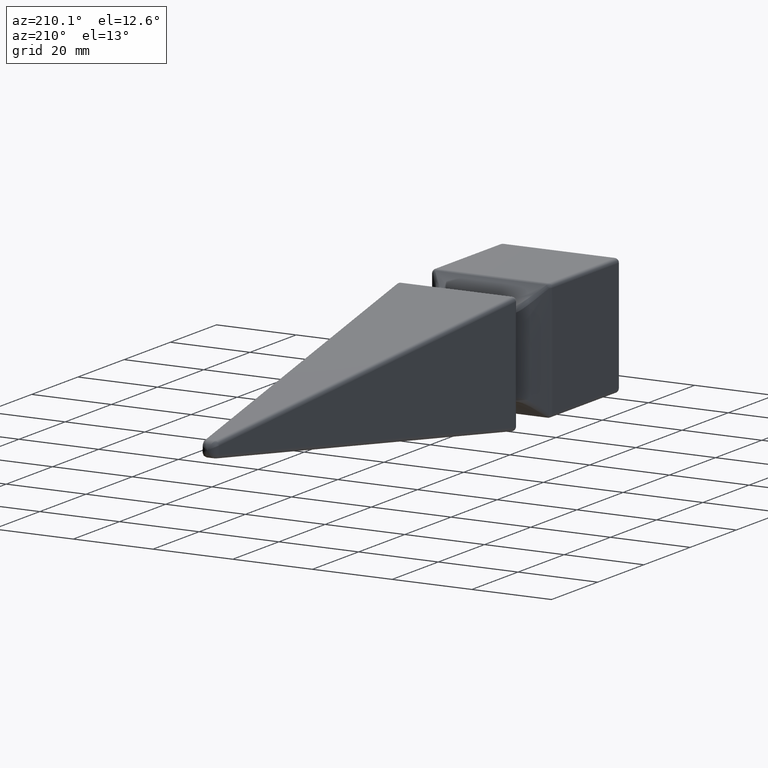
[diagram: clean part render]
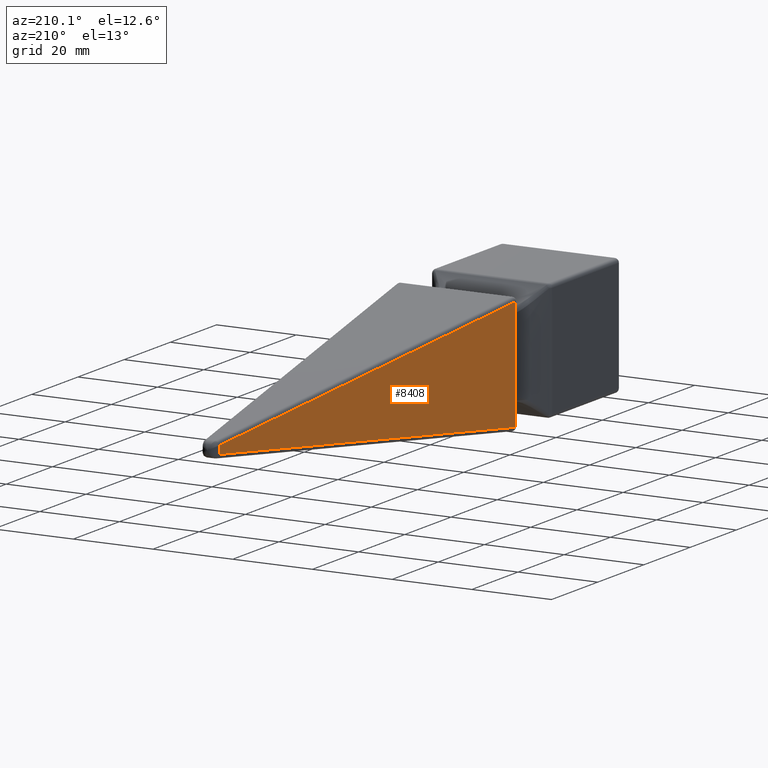
[diagram: same view with one face highlighted and labeled with its STEP entity id]
A machine part, auxiliary view. The second image highlights one B-rep face of the part: STEP entity #8408.
In plain terms, the highlighted planar face has unit normal (-0.9926, 0.1216, 0).
Its self-contained STEP definition (entity closure, byte-faithful):
#116 = LINE ( 'NONE', #6956, #8076 ) ;
#889 = CARTESIAN_POINT ( 'NONE',  ( -14.93463741829802593, -30.96642993909968666, -4.647352398751419145 ) ) ;
#1909 = CARTESIAN_POINT ( 'NONE',  ( -1.999621450378938237, 74.62513450090668243, 1.007041228335173955 ) ) ;
#1970 = CARTESIAN_POINT ( 'NONE',  ( -14.93463741829803304, -30.96642993909973285, 13.94205719625426809 ) ) ;
#2209 = ORIENTED_EDGE ( 'NONE', *, *, #8659, .T. ) ;
#2248 = LINE ( 'NONE', #5143, #10077 ) ;
#2456 = ORIENTED_EDGE ( 'NONE', *, *, #8005, .T. ) ;
#3118 = DIRECTION ( 'NONE',  ( -0.1215915408552495497, -0.9925802220437630607, 0.000000000000000000 ) ) ;
#3411 = EDGE_CURVE ( 'NONE', #6188, #9281, #2248, .T. ) ;
#3568 = VERTEX_POINT ( 'NONE', #9801 ) ;
#3779 = VERTEX_POINT ( 'NONE', #9144 ) ;
#4358 = CARTESIAN_POINT ( 'NONE',  ( -1.985160444087523457, 74.74318308171048386, -0.9925802220437617285 ) ) ;
#4363 = EDGE_CURVE ( 'NONE', #3779, #3568, #7899, .T. ) ;
#4944 = DIRECTION ( 'NONE',  ( -0.1207025510154212805, -0.9853231897995394784, -0.1207025510154212528 ) ) ;
#5055 = PLANE ( 'NONE',  #6384 ) ;
#5143 = CARTESIAN_POINT ( 'NONE',  ( -1.985160444087523457, 74.74318308171048386, -15.00009999999999799 ) ) ;
#6100 = DIRECTION ( 'NONE',  ( -0.9925802220437631718, 0.1215915408552495636, 0.000000000000000000 ) ) ;
#6188 = VERTEX_POINT ( 'NONE', #4358 ) ;
#6384 = AXIS2_PLACEMENT_3D ( 'NONE', #9003, #6100, #3118 ) ;
#6956 = CARTESIAN_POINT ( 'NONE',  ( -11.04959866449865835, 0.7480511980830971686, -10.05701844245489340 ) ) ;
#7484 = ORIENTED_EDGE ( 'NONE', *, *, #3411, .F. ) ;
#7527 = EDGE_LOOP ( 'NONE', ( #2209, #8901, #2456, #7484 ) ) ;
#7819 = DIRECTION ( 'NONE',  ( 0.1207025510154212805, 0.9853231897995394784, -0.1207025510154213083 ) ) ;
#7899 = B_SPLINE_CURVE_WITH_KNOTS ( 'NONE', 3,
 ( #11729, #889, #12664, #1970 ),
 .UNSPECIFIED., .F., .F.,
 ( 4, 4 ),
 ( 0.000000000000000000, 0.02788411439250852372 ),
 .UNSPECIFIED. ) ;
#7940 = FACE_OUTER_BOUND ( 'NONE', #7527, .T. ) ;
#8005 = EDGE_CURVE ( 'NONE', #3568, #9281, #10688, .T. ) ;
#8041 = DIRECTION ( 'NONE',  ( -0.000000000000000000, -0.000000000000000000, 1.000000000000000000 ) ) ;
#8076 = VECTOR ( 'NONE', #4944, 1000.000000000000114 ) ;
#8087 = VECTOR ( 'NONE', #7819, 1000.000000000000114 ) ;
#8408 = ADVANCED_FACE ( 'NONE', ( #7940 ), #5055, .T. ) ;
#8659 = EDGE_CURVE ( 'NONE', #6188, #3779, #116, .T. ) ;
#8901 = ORIENTED_EDGE ( 'NONE', *, *, #4363, .T. ) ;
#9003 = CARTESIAN_POINT ( 'NONE',  ( -10.97651766133316542, 1.344628540873258116, -15.00009999999999799 ) ) ;
#9144 = CARTESIAN_POINT ( 'NONE',  ( -14.93463741829802771, -30.96642993909970087, -13.94205719625426099 ) ) ;
#9281 = VERTEX_POINT ( 'NONE', #12037 ) ;
#9801 = CARTESIAN_POINT ( 'NONE',  ( -14.93463741829803304, -30.96642993909973285, 13.94205719625426809 ) ) ;
#10077 = VECTOR ( 'NONE', #8041, 1000.000000000000000 ) ;
#10688 = LINE ( 'NONE', #1909, #8087 ) ;
#11729 = CARTESIAN_POINT ( 'NONE',  ( -14.93463741829802771, -30.96642993909970087, -13.94205719625426099 ) ) ;
#12037 = CARTESIAN_POINT ( 'NONE',  ( -1.985160444087523457, 74.74318308171048386, 0.9925802220437599521 ) ) ;
#12664 = CARTESIAN_POINT ( 'NONE',  ( -14.93463741829802593, -30.96642993909968666, 4.647352398751422697 ) ) ;